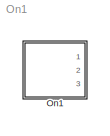
MODEL On1
KIND model
CONFIG AbsTol = auto
CONFIG FixedStep = auto
CONFIG MaxStep = auto
CONFIG MinStep = auto
CONFIG RelTol = 1e-3
CONFIG Solver = ode45
CONFIG SolverMode = Auto
CONFIG StartTime = 0.0
CONFIG StopTime = 10.0
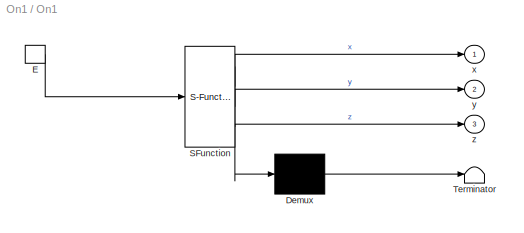
BLOCK [SubSystem] On1
  MaskDescription = Stateflow diagram
  MaskDisplay = plot(sf('Private','sfblk','xIcon'),sf('Private','sfblk','yIcon'));text(0.5,0,sf('Private', 'sfblk', 'tIcon'),'HorizontalAl','Center','VerticalAl','Bottom');
  MaskIconFrame = off
  MaskIconOpaque = off
  MaskIconRotate = none
  MaskIconUnits = autoscale
  MaskSelfModifiable = on
  MaskType = Stateflow
  Ports = [0, 3, 0, 1]
  TreatAsAtomicUnit = off
BLOCK [Demux] On1/ Demux 
  Outputs = 1
  Ports = [1, 1]
BLOCK [S-Function] On1/ SFunction 
  FunctionName = sf_sfun
  PortCounts = [1 4]
  Ports = [1, 4]
  Tag = Stateflow S-Function On1 1
BLOCK [Terminator] On1/ Terminator 
BLOCK [TriggerPort] On1/E
  Ports = [0, 1]
  ShowOutputPort = on
  TriggerType = either
BLOCK [Outport] On1/x
BLOCK [Outport] On1/y
  Port = 2
BLOCK [Outport] On1/z
  Port = 3
LINE On1/ Demux :1 -> On1/ Terminator :1
LINE On1/ SFunction :1 -> On1/ Demux :1
LINE On1/ SFunction :2 -> On1/x:1
LINE On1/ SFunction :3 -> On1/y:1
LINE On1/ SFunction :4 -> On1/z:1
LINE On1/E:1 -> On1/ SFunction :1
CHART On1 states=5 transitions=4
  STATE_LABEL 'TOP1'
  STATE_LABEL 'TOP2'
  STATE_LABEL 'A'
  STATE_LABEL 'B'
  STATE_LABEL 'C/\\non F: x++;y++;\\non after (2,E): z++;'
